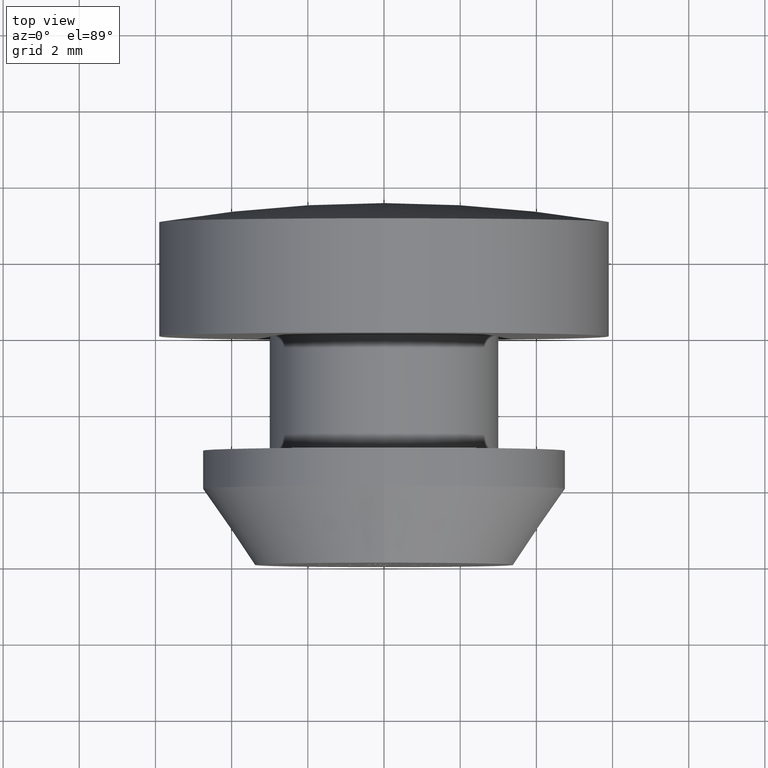
[diagram: clean part render]
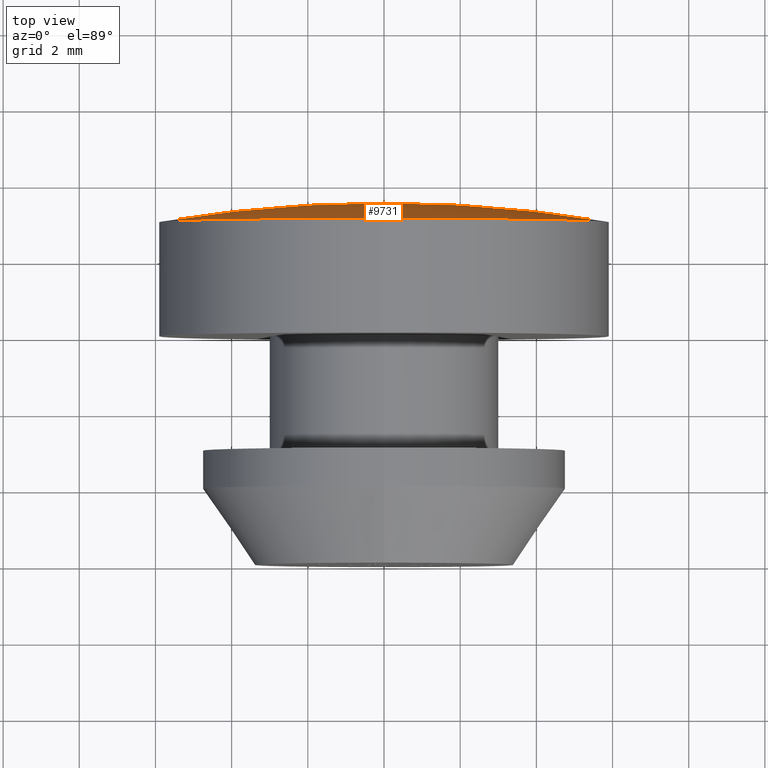
[diagram: same view with one face highlighted and labeled with its STEP entity id]
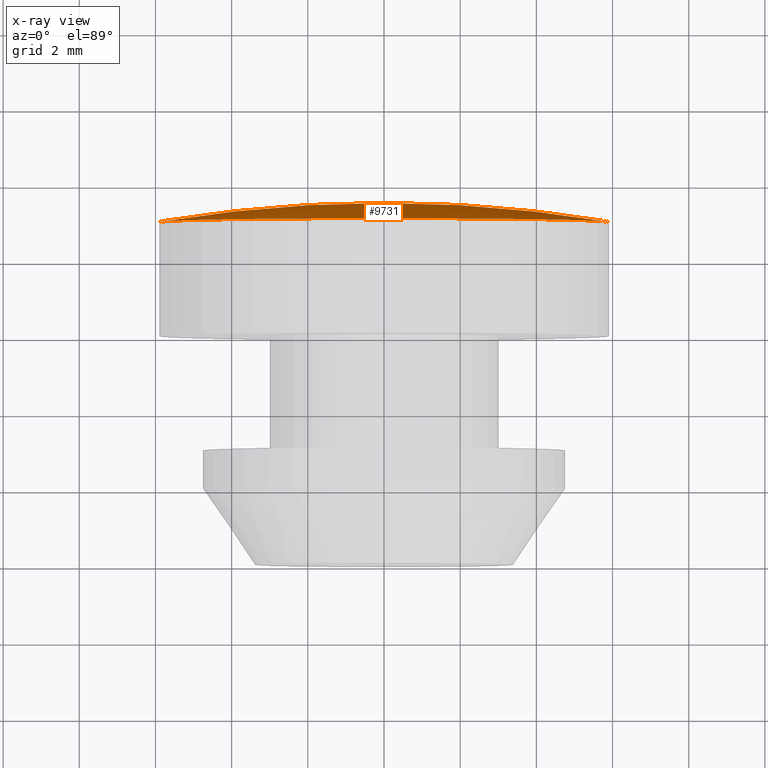
[diagram: x-ray of the same camera — body ghosted, the highlighted face saturated]
A machine part, top view. The second image highlights one B-rep face of the part: STEP entity #9731.
The next image is the same camera in x-ray: the body ghosted, the highlighted face saturated — about 0% of this face is hidden behind the body in this view.
In plain terms, the highlighted spherical surface has radius 35.06 mm.
Its self-contained STEP definition (entity closure, byte-faithful):
#68 = DIRECTION ( 'NONE',  ( 0.000000000000000000, 0.000000000000000000, -1.000000000000000000 ) ) ;
#507 = ORIENTED_EDGE ( 'NONE', *, *, #5480, .F. ) ;
#765 = EDGE_CURVE ( 'NONE', #5411, #12333, #7687, .T. ) ;
#1128 = SPHERICAL_SURFACE ( 'NONE', #10205, 35.06000000000008754 ) ;
#1238 = AXIS2_PLACEMENT_3D ( 'NONE', #9779, #10910, #68 ) ;
#1327 = AXIS2_PLACEMENT_3D ( 'NONE', #9623, #9571, #13166 ) ;
#1517 = DIRECTION ( 'NONE',  ( -1.000000000000000000, 0.000000000000000000, 0.000000000000000000 ) ) ;
#1861 = EDGE_LOOP ( 'NONE', ( #507, #10875, #14780, #7513 ) ) ;
#2041 = AXIS2_PLACEMENT_3D ( 'NONE', #11240, #12427, #1517 ) ;
#3000 = DIRECTION ( 'NONE',  ( 1.000000000000000000, 0.000000000000000000, 0.000000000000000000 ) ) ;
#3002 = CIRCLE ( 'NONE', #1327, 35.06000000000008754 ) ;
#3497 = VERTEX_POINT ( 'NONE', #6554 ) ;
#4909 = FACE_OUTER_BOUND ( 'NONE', #1861, .T. ) ;
#4916 = DIRECTION ( 'NONE',  ( -0.000000000000000000, -1.000000000000000000, -0.000000000000000000 ) ) ;
#5411 = VERTEX_POINT ( 'NONE', #10933 ) ;
#5480 = EDGE_CURVE ( 'NONE', #3497, #7444, #13778, .T. ) ;
#6554 = CARTESIAN_POINT ( 'NONE',  ( 2.146805838905315698E-15, 9.499999999999994671, 0.000000000000000000 ) ) ;
#6824 = CARTESIAN_POINT ( 'NONE',  ( -5.900000000000005684, 8.999999999999998224, 7.225416114969391096E-16 ) ) ;
#7444 = VERTEX_POINT ( 'NONE', #7522 ) ;
#7513 = ORIENTED_EDGE ( 'NONE', *, *, #12547, .F. ) ;
#7522 = CARTESIAN_POINT ( 'NONE',  ( 5.900000000000005684, 8.999999999999998224, 0.000000000000000000 ) ) ;
#7687 = CIRCLE ( 'NONE', #13191, 5.900000000000001243 ) ;
#8765 = CARTESIAN_POINT ( 'NONE',  ( 0.000000000000000000, -25.56000000000009820, 0.000000000000000000 ) ) ;
#9571 = DIRECTION ( 'NONE',  ( 1.224646799147353207E-16, -0.000000000000000000, 1.000000000000000000 ) ) ;
#9623 = CARTESIAN_POINT ( 'NONE',  ( 0.000000000000000000, -25.56000000000009820, 0.000000000000000000 ) ) ;
#9731 = ADVANCED_FACE ( 'NONE', ( #4909 ), #1128, .T. ) ;
#9779 = CARTESIAN_POINT ( 'NONE',  ( 0.000000000000000000, 8.999999999999994671, 0.000000000000000000 ) ) ;
#10205 = AXIS2_PLACEMENT_3D ( 'NONE', #8765, #13782, #3000 ) ;
#10875 = ORIENTED_EDGE ( 'NONE', *, *, #11068, .T. ) ;
#10910 = DIRECTION ( 'NONE',  ( -0.000000000000000000, -1.000000000000000000, -0.000000000000000000 ) ) ;
#10933 = CARTESIAN_POINT ( 'NONE',  ( 7.225416114969386166E-16, 8.999999999999994671, 5.900000000000002132 ) ) ;
#11068 = EDGE_CURVE ( 'NONE', #3497, #12333, #3002, .T. ) ;
#11240 = CARTESIAN_POINT ( 'NONE',  ( 0.000000000000000000, -25.56000000000009820, 0.000000000000000000 ) ) ;
#12279 = CARTESIAN_POINT ( 'NONE',  ( 0.000000000000000000, 8.999999999999994671, 0.000000000000000000 ) ) ;
#12333 = VERTEX_POINT ( 'NONE', #6824 ) ;
#12427 = DIRECTION ( 'NONE',  ( 0.000000000000000000, 0.000000000000000000, -1.000000000000000000 ) ) ;
#12547 = EDGE_CURVE ( 'NONE', #7444, #5411, #14455, .T. ) ;
#13166 = DIRECTION ( 'NONE',  ( 1.000000000000000000, 0.000000000000000000, -1.224646799147353207E-16 ) ) ;
#13191 = AXIS2_PLACEMENT_3D ( 'NONE', #12279, #4916, #15822 ) ;
#13778 = CIRCLE ( 'NONE', #2041, 35.06000000000008754 ) ;
#13782 = DIRECTION ( 'NONE',  ( 0.000000000000000000, 0.000000000000000000, 1.000000000000000000 ) ) ;
#14455 = CIRCLE ( 'NONE', #1238, 5.900000000000001243 ) ;
#14780 = ORIENTED_EDGE ( 'NONE', *, *, #765, .F. ) ;
#15822 = DIRECTION ( 'NONE',  ( 0.000000000000000000, 0.000000000000000000, -1.000000000000000000 ) ) ;